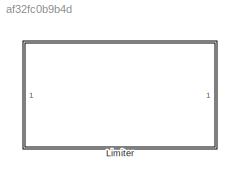
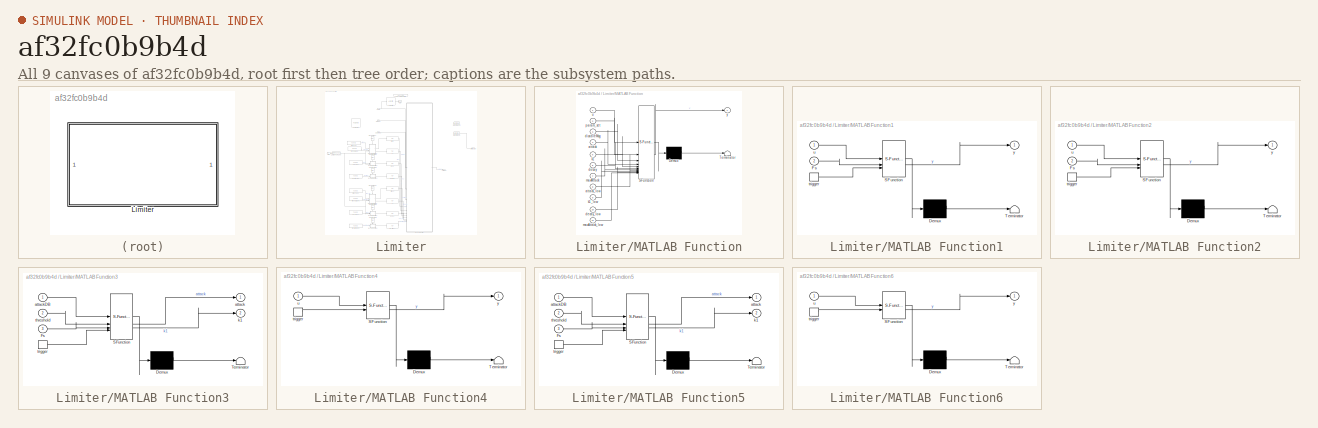
[diagram: thumbnail index - all 9 canvases of the model, root first then tree order]
MODEL slx_af32fc0b9b4d
KIND library
CONFIG AbsTol = auto
CONFIG EnableMultiTasking = off
CONFIG FixedStep = auto
CONFIG MaxStep = auto
CONFIG MinStep = auto
CONFIG RelTol = 1e-3
CONFIG SampleTimeConstraint = Unconstrained
CONFIG SolverName = VariableStepAuto
CONFIG StartTime = 0.0
CONFIG StopTime = 10.0
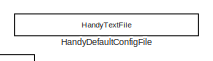
[diagram: Limiter - part 1/6, top center region]
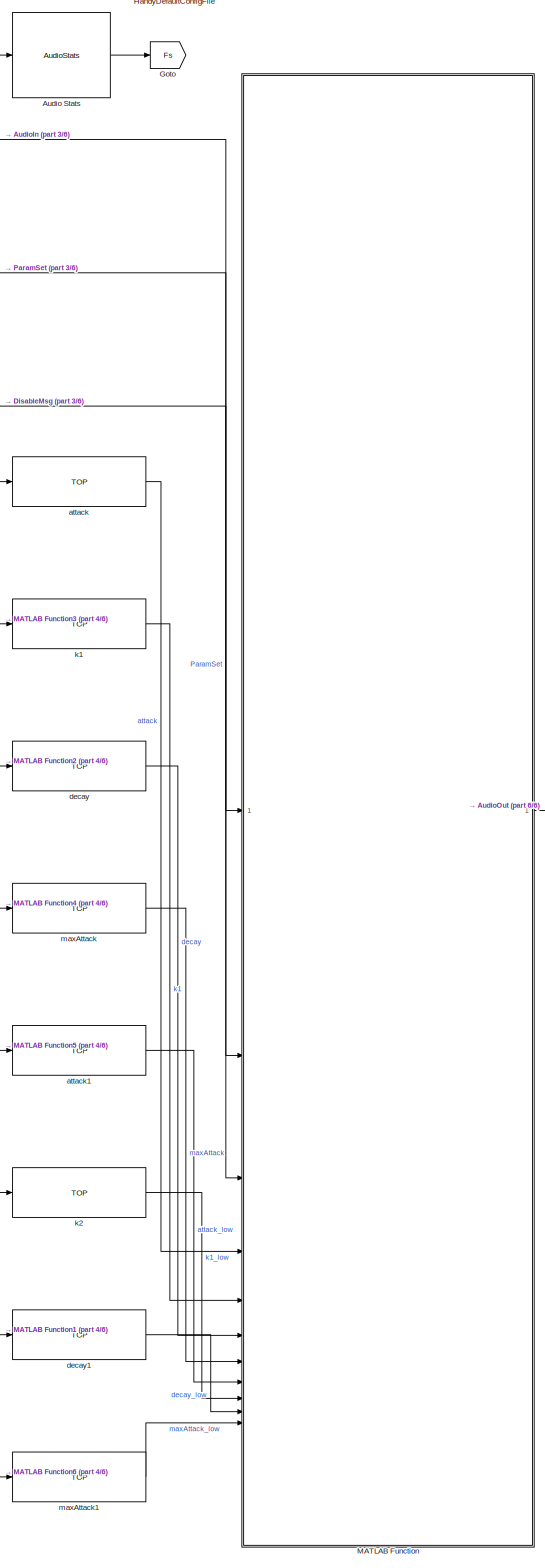
[diagram: Limiter - part 2/6, center side, full height]
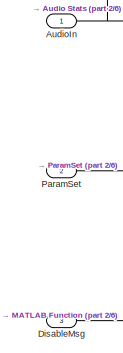
[diagram: Limiter - part 3/6, top center region]
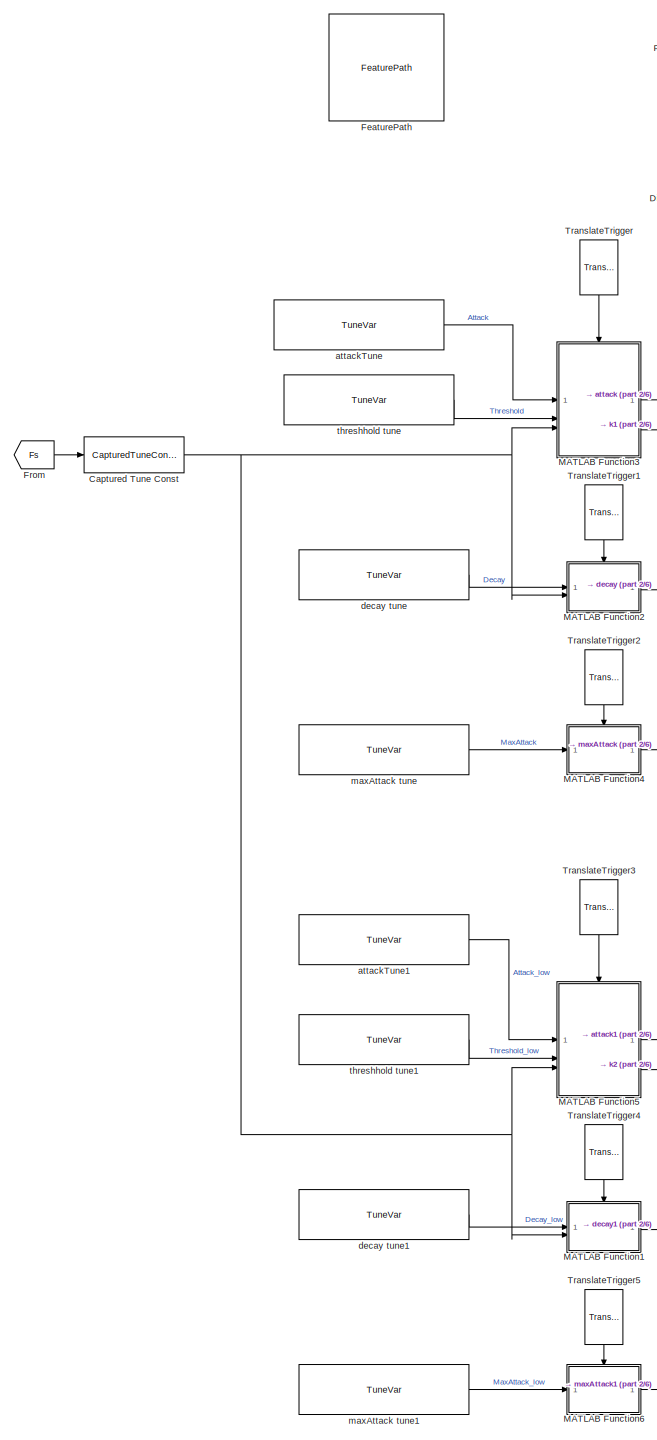
[diagram: Limiter - part 4/6, left side, full height]
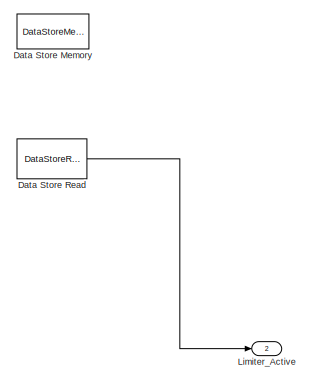
[diagram: Limiter - part 5/6, top right region]
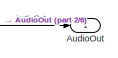
[diagram: Limiter - part 6/6, middle right region]
BLOCK [SubSystem] Limiter
  ShowPortLabels = SignalName
BLOCK [Reference] Limiter/Audio Stats  REF=AudioStats/AudioStats
  SourceBlock = AudioStats/AudioStats
  SourceProductName = Bose Talaria
  SourceType = Talaria Audio Statistics
BLOCK [Inport] Limiter/AudioIn
BLOCK [Outport] Limiter/AudioOut
  VectorParamsAs1DForOutWhenUnconnected = off
BLOCK [Reference] Limiter/Captured Tune Const  REF=TuneVar/CapturedTuneConst
  SourceBlock = TuneVar/CapturedTuneConst
  SourceProductName = Bose Talaria
  SourceType = Talaria Captured Constant
BLOCK [DataStoreMemory] Limiter/Data Store Memory
  DataStoreName = Limiter_Active
  OutDataTypeStr = uint32
  ShowAdditionalParam = off
  SignalType = real
BLOCK [DataStoreRead] Limiter/Data Store Read
  DataStoreName = Limiter_Active
  IndexOptions = Index vector (dialog)
  Indices = 1
  OutputSizes = 1
BLOCK [Inport] Limiter/DisableMsg
  Port = 3
BLOCK [Reference] Limiter/FeaturePath  REF=FeaturePath/FeaturePath
  SourceBlock = FeaturePath/FeaturePath
  SourceProductName = Bose Talaria
  SourceType = Talaria Feature Path
BLOCK [From] Limiter/From
  GotoTag = Fs
BLOCK [Goto] Limiter/Goto
  GotoTag = Fs
BLOCK [Reference] Limiter/HandyDefaultConfigFile  REF=HandyTextFile/HandyTextFile
  SourceBlock = HandyTextFile/HandyTextFile
  SourceProductName = Bose Talaria
  SourceType = Talaria Handy Text File
BLOCK [Outport] Limiter/Limiter_Active
  Port = 2
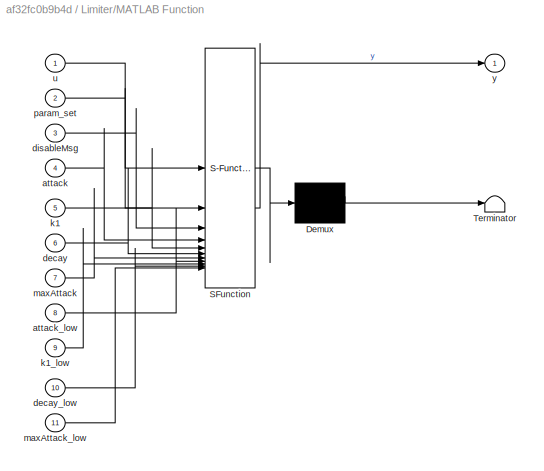
BLOCK [SubSystem] Limiter/MATLAB Function
  ErrorFcn = Stateflow.Translate.translate
  PermitHierarchicalResolution = ExplicitOnly
  SFBlockType = MATLAB Function
  TreatAsAtomicUnit = on
BLOCK [Demux] Limiter/MATLAB Function/ Demux 
  Outputs = 1
BLOCK [S-Function] Limiter/MATLAB Function/ SFunction 
  EnableBusSupport = off
  FunctionName = sf_sfun
  PortCounts = [11 2]
  SFcnIsStateOwnerBlock = off
  SFunctionDeploymentMode = off
  Tag = Stateflow S-Function 2
BLOCK [Terminator] Limiter/MATLAB Function/ Terminator 
BLOCK [Inport] Limiter/MATLAB Function/attack
  Port = 4
BLOCK [Inport] Limiter/MATLAB Function/attack_low
  Port = 8
BLOCK [Inport] Limiter/MATLAB Function/decay
  Port = 6
BLOCK [Inport] Limiter/MATLAB Function/decay_low
  Port = 10
BLOCK [Inport] Limiter/MATLAB Function/disableMsg
  Port = 3
BLOCK [Inport] Limiter/MATLAB Function/k1
  Port = 5
BLOCK [Inport] Limiter/MATLAB Function/k1_low
  Port = 9
BLOCK [Inport] Limiter/MATLAB Function/maxAttack
  Port = 7
BLOCK [Inport] Limiter/MATLAB Function/maxAttack_low
  Port = 11
BLOCK [Inport] Limiter/MATLAB Function/param_set
  Port = 2
BLOCK [Inport] Limiter/MATLAB Function/u
BLOCK [Outport] Limiter/MATLAB Function/y
  VectorParamsAs1DForOutWhenUnconnected = off
BLOCK [SubSystem] Limiter/MATLAB Function1
  ErrorFcn = Stateflow.Translate.translate
  PermitHierarchicalResolution = ExplicitOnly
  SFBlockType = MATLAB Function
  TreatAsAtomicUnit = on
BLOCK [Demux] Limiter/MATLAB Function1/ Demux 
  Outputs = 1
BLOCK [S-Function] Limiter/MATLAB Function1/ SFunction 
  EnableBusSupport = off
  FunctionName = sf_sfun
  PortCounts = [3 2]
  SFcnIsStateOwnerBlock = off
  SFunctionDeploymentMode = off
  Tag = Stateflow S-Function 1
BLOCK [Terminator] Limiter/MATLAB Function1/ Terminator 
BLOCK [Inport] Limiter/MATLAB Function1/Fs
  Port = 2
BLOCK [TriggerPort] Limiter/MATLAB Function1/trigger
  ShowOutputPort = on
  StatesWhenEnabling = held
  TriggerType = function-call
  VariantControl = (inherit)
BLOCK [Inport] Limiter/MATLAB Function1/u
BLOCK [Outport] Limiter/MATLAB Function1/y
  VectorParamsAs1DForOutWhenUnconnected = off
BLOCK [SubSystem] Limiter/MATLAB Function2
  ErrorFcn = Stateflow.Translate.translate
  PermitHierarchicalResolution = ExplicitOnly
  SFBlockType = MATLAB Function
  TreatAsAtomicUnit = on
BLOCK [Demux] Limiter/MATLAB Function2/ Demux 
  Outputs = 1
BLOCK [S-Function] Limiter/MATLAB Function2/ SFunction 
  EnableBusSupport = off
  FunctionName = sf_sfun
  PortCounts = [3 2]
  SFcnIsStateOwnerBlock = off
  SFunctionDeploymentMode = off
  Tag = Stateflow S-Function 3
BLOCK [Terminator] Limiter/MATLAB Function2/ Terminator 
BLOCK [Inport] Limiter/MATLAB Function2/Fs
  Port = 2
BLOCK [TriggerPort] Limiter/MATLAB Function2/trigger
  ShowOutputPort = on
  StatesWhenEnabling = held
  TriggerType = function-call
  VariantControl = (inherit)
BLOCK [Inport] Limiter/MATLAB Function2/u
BLOCK [Outport] Limiter/MATLAB Function2/y
  VectorParamsAs1DForOutWhenUnconnected = off
BLOCK [SubSystem] Limiter/MATLAB Function3
  ErrorFcn = Stateflow.Translate.translate
  PermitHierarchicalResolution = ExplicitOnly
  SFBlockType = MATLAB Function
  TreatAsAtomicUnit = on
BLOCK [Demux] Limiter/MATLAB Function3/ Demux 
  Outputs = 1
BLOCK [S-Function] Limiter/MATLAB Function3/ SFunction 
  EnableBusSupport = off
  FunctionName = sf_sfun
  PortCounts = [4 3]
  SFcnIsStateOwnerBlock = off
  SFunctionDeploymentMode = off
  Tag = Stateflow S-Function 4
BLOCK [Terminator] Limiter/MATLAB Function3/ Terminator 
BLOCK [Inport] Limiter/MATLAB Function3/Fs
  Port = 3
BLOCK [Outport] Limiter/MATLAB Function3/attack
  VectorParamsAs1DForOutWhenUnconnected = off
BLOCK [Inport] Limiter/MATLAB Function3/attackDB
BLOCK [Outport] Limiter/MATLAB Function3/k1
  Port = 2
  VectorParamsAs1DForOutWhenUnconnected = off
BLOCK [Inport] Limiter/MATLAB Function3/threshold
  Port = 2
BLOCK [TriggerPort] Limiter/MATLAB Function3/trigger
  ShowOutputPort = on
  StatesWhenEnabling = held
  TriggerType = function-call
  VariantControl = (inherit)
BLOCK [SubSystem] Limiter/MATLAB Function4
  ErrorFcn = Stateflow.Translate.translate
  PermitHierarchicalResolution = ExplicitOnly
  SFBlockType = MATLAB Function
  TreatAsAtomicUnit = on
BLOCK [Demux] Limiter/MATLAB Function4/ Demux 
  Outputs = 1
BLOCK [S-Function] Limiter/MATLAB Function4/ SFunction 
  EnableBusSupport = off
  FunctionName = sf_sfun
  PortCounts = [2 2]
  SFcnIsStateOwnerBlock = off
  SFunctionDeploymentMode = off
  Tag = Stateflow S-Function 5
BLOCK [Terminator] Limiter/MATLAB Function4/ Terminator 
BLOCK [TriggerPort] Limiter/MATLAB Function4/trigger
  ShowOutputPort = on
  StatesWhenEnabling = held
  TriggerType = function-call
  VariantControl = (inherit)
BLOCK [Inport] Limiter/MATLAB Function4/u
BLOCK [Outport] Limiter/MATLAB Function4/y
  VectorParamsAs1DForOutWhenUnconnected = off
BLOCK [SubSystem] Limiter/MATLAB Function5
  ErrorFcn = Stateflow.Translate.translate
  PermitHierarchicalResolution = ExplicitOnly
  SFBlockType = MATLAB Function
  TreatAsAtomicUnit = on
BLOCK [Demux] Limiter/MATLAB Function5/ Demux 
  Outputs = 1
BLOCK [S-Function] Limiter/MATLAB Function5/ SFunction 
  EnableBusSupport = off
  FunctionName = sf_sfun
  PortCounts = [4 3]
  SFcnIsStateOwnerBlock = off
  SFunctionDeploymentMode = off
  Tag = Stateflow S-Function 6
BLOCK [Terminator] Limiter/MATLAB Function5/ Terminator 
BLOCK [Inport] Limiter/MATLAB Function5/Fs
  Port = 3
BLOCK [Outport] Limiter/MATLAB Function5/attack
  VectorParamsAs1DForOutWhenUnconnected = off
BLOCK [Inport] Limiter/MATLAB Function5/attackDB
BLOCK [Outport] Limiter/MATLAB Function5/k1
  Port = 2
  VectorParamsAs1DForOutWhenUnconnected = off
BLOCK [Inport] Limiter/MATLAB Function5/threshold
  Port = 2
BLOCK [TriggerPort] Limiter/MATLAB Function5/trigger
  ShowOutputPort = on
  StatesWhenEnabling = held
  TriggerType = function-call
  VariantControl = (inherit)
BLOCK [SubSystem] Limiter/MATLAB Function6
  ErrorFcn = Stateflow.Translate.translate
  PermitHierarchicalResolution = ExplicitOnly
  SFBlockType = MATLAB Function
  TreatAsAtomicUnit = on
BLOCK [Demux] Limiter/MATLAB Function6/ Demux 
  Outputs = 1
BLOCK [S-Function] Limiter/MATLAB Function6/ SFunction 
  EnableBusSupport = off
  FunctionName = sf_sfun
  PortCounts = [2 2]
  SFcnIsStateOwnerBlock = off
  SFunctionDeploymentMode = off
  Tag = Stateflow S-Function 7
BLOCK [Terminator] Limiter/MATLAB Function6/ Terminator 
BLOCK [TriggerPort] Limiter/MATLAB Function6/trigger
  ShowOutputPort = on
  StatesWhenEnabling = held
  TriggerType = function-call
  VariantControl = (inherit)
BLOCK [Inport] Limiter/MATLAB Function6/u
BLOCK [Outport] Limiter/MATLAB Function6/y
  VectorParamsAs1DForOutWhenUnconnected = off
BLOCK [Inport] Limiter/ParamSet
  Port = 2
BLOCK [Reference] Limiter/TranslateTrigger  REF=TuneVar/TranslateTrigger
  NameLocation = left
  SourceBlock = TuneVar/TranslateTrigger
  SourceProductName = Bose Talaria
  SourceType = Talaria Translate Trigger
BLOCK [Reference] Limiter/TranslateTrigger1  REF=TuneVar/TranslateTrigger
  NameLocation = left
  SourceBlock = TuneVar/TranslateTrigger
  SourceProductName = Bose Talaria
  SourceType = Talaria Translate Trigger
BLOCK [Reference] Limiter/TranslateTrigger2  REF=TuneVar/TranslateTrigger
  NameLocation = left
  SourceBlock = TuneVar/TranslateTrigger
  SourceProductName = Bose Talaria
  SourceType = Talaria Translate Trigger
BLOCK [Reference] Limiter/TranslateTrigger3  REF=TuneVar/TranslateTrigger
  NameLocation = left
  SourceBlock = TuneVar/TranslateTrigger
  SourceProductName = Bose Talaria
  SourceType = Talaria Translate Trigger
BLOCK [Reference] Limiter/TranslateTrigger4  REF=TuneVar/TranslateTrigger
  NameLocation = left
  SourceBlock = TuneVar/TranslateTrigger
  SourceProductName = Bose Talaria
  SourceType = Talaria Translate Trigger
BLOCK [Reference] Limiter/TranslateTrigger5  REF=TuneVar/TranslateTrigger
  NameLocation = left
  SourceBlock = TuneVar/TranslateTrigger
  SourceProductName = Bose Talaria
  SourceType = Talaria Translate Trigger
BLOCK [Reference] Limiter/attack  REF=TOP/TOP
  SourceBlock = TOP/TOP
  SourceProductName = Bose Talaria
  SourceType = Talaria Target Overlay Parameter
BLOCK [Reference] Limiter/attack1  REF=TOP/TOP
  SourceBlock = TOP/TOP
  SourceProductName = Bose Talaria
  SourceType = Talaria Target Overlay Parameter
BLOCK [Reference] Limiter/attackTune  REF=TuneVar/TuneVar
  SourceBlock = TuneVar/TuneVar
  SourceProductName = Bose Talaria
  SourceType = Talaria Tune Variable
BLOCK [Reference] Limiter/attackTune1  REF=TuneVar/TuneVar
  SourceBlock = TuneVar/TuneVar
  SourceProductName = Bose Talaria
  SourceType = Talaria Tune Variable
BLOCK [Reference] Limiter/decay  REF=TOP/TOP
  SourceBlock = TOP/TOP
  SourceProductName = Bose Talaria
  SourceType = Talaria Target Overlay Parameter
BLOCK [Reference] Limiter/decay tune  REF=TuneVar/TuneVar
  SourceBlock = TuneVar/TuneVar
  SourceProductName = Bose Talaria
  SourceType = Talaria Tune Variable
BLOCK [Reference] Limiter/decay tune1  REF=TuneVar/TuneVar
  SourceBlock = TuneVar/TuneVar
  SourceProductName = Bose Talaria
  SourceType = Talaria Tune Variable
BLOCK [Reference] Limiter/decay1  REF=TOP/TOP
  SourceBlock = TOP/TOP
  SourceProductName = Bose Talaria
  SourceType = Talaria Target Overlay Parameter
BLOCK [Reference] Limiter/k1  REF=TOP/TOP
  SourceBlock = TOP/TOP
  SourceProductName = Bose Talaria
  SourceType = Talaria Target Overlay Parameter
BLOCK [Reference] Limiter/k2  REF=TOP/TOP
  SourceBlock = TOP/TOP
  SourceProductName = Bose Talaria
  SourceType = Talaria Target Overlay Parameter
BLOCK [Reference] Limiter/maxAttack  REF=TOP/TOP
  SourceBlock = TOP/TOP
  SourceProductName = Bose Talaria
  SourceType = Talaria Target Overlay Parameter
BLOCK [Reference] Limiter/maxAttack tune  REF=TuneVar/TuneVar
  SourceBlock = TuneVar/TuneVar
  SourceProductName = Bose Talaria
  SourceType = Talaria Tune Variable
BLOCK [Reference] Limiter/maxAttack tune1  REF=TuneVar/TuneVar
  SourceBlock = TuneVar/TuneVar
  SourceProductName = Bose Talaria
  SourceType = Talaria Tune Variable
BLOCK [Reference] Limiter/maxAttack1  REF=TOP/TOP
  SourceBlock = TOP/TOP
  SourceProductName = Bose Talaria
  SourceType = Talaria Target Overlay Parameter
BLOCK [Reference] Limiter/threshhold tune  REF=TuneVar/TuneVar
  SourceBlock = TuneVar/TuneVar
  SourceProductName = Bose Talaria
  SourceType = Talaria Tune Variable
BLOCK [Reference] Limiter/threshhold tune1  REF=TuneVar/TuneVar
  SourceBlock = TuneVar/TuneVar
  SourceProductName = Bose Talaria
  SourceType = Talaria Tune Variable
LINE Limiter/Audio Stats:1 -> Limiter/Goto:1
NET Limiter/AudioIn:1 -> Limiter/Audio Stats:1, Limiter/MATLAB Function:1
NET Limiter/Captured Tune Const:1 -> Limiter/MATLAB Function1:2, Limiter/MATLAB Function2:2, Limiter/MATLAB Function3:3, Limiter/MATLAB Function5:3
LINE Limiter/Data Store Read:1 -> Limiter/Limiter_Active:1
LINE Limiter/DisableMsg:1 -> Limiter/MATLAB Function:3
LINE Limiter/From:1 -> Limiter/Captured Tune Const:1
LINE Limiter/MATLAB Function1:1 -> Limiter/decay1:1
LINE Limiter/MATLAB Function2:1 -> Limiter/decay:1
LINE Limiter/MATLAB Function3:1 -> Limiter/attack:1
LINE Limiter/MATLAB Function3:2 -> Limiter/k1:1
LINE Limiter/MATLAB Function4:1 -> Limiter/maxAttack:1
LINE Limiter/MATLAB Function5:1 -> Limiter/attack1:1
LINE Limiter/MATLAB Function5:2 -> Limiter/k2:1
LINE Limiter/MATLAB Function6:1 -> Limiter/maxAttack1:1
LINE Limiter/MATLAB Function:1 -> Limiter/AudioOut:1
LINE Limiter/ParamSet:1 -> Limiter/MATLAB Function:2
LINE Limiter/TranslateTrigger1:1 -> Limiter/MATLAB Function2:trigger
LINE Limiter/TranslateTrigger2:1 -> Limiter/MATLAB Function4:trigger
LINE Limiter/TranslateTrigger3:1 -> Limiter/MATLAB Function5:trigger
LINE Limiter/TranslateTrigger4:1 -> Limiter/MATLAB Function1:trigger
LINE Limiter/TranslateTrigger5:1 -> Limiter/MATLAB Function6:trigger
LINE Limiter/TranslateTrigger:1 -> Limiter/MATLAB Function3:trigger
LINE Limiter/attack1:1 -> Limiter/MATLAB Function:8
LINE Limiter/attack:1 -> Limiter/MATLAB Function:4
LINE Limiter/attackTune1:1 -> Limiter/MATLAB Function5:1
LINE Limiter/attackTune:1 -> Limiter/MATLAB Function3:1
LINE Limiter/decay tune1:1 -> Limiter/MATLAB Function1:1
LINE Limiter/decay tune:1 -> Limiter/MATLAB Function2:1
LINE Limiter/decay1:1 -> Limiter/MATLAB Function:10
LINE Limiter/decay:1 -> Limiter/MATLAB Function:6
LINE Limiter/k1:1 -> Limiter/MATLAB Function:5
LINE Limiter/k2:1 -> Limiter/MATLAB Function:9
LINE Limiter/maxAttack tune1:1 -> Limiter/MATLAB Function6:1
LINE Limiter/maxAttack tune:1 -> Limiter/MATLAB Function4:1
LINE Limiter/maxAttack1:1 -> Limiter/MATLAB Function:11
LINE Limiter/maxAttack:1 -> Limiter/MATLAB Function:7
LINE Limiter/threshhold tune1:1 -> Limiter/MATLAB Function5:2
LINE Limiter/threshhold tune:1 -> Limiter/MATLAB Function3:2
note: NET lines group one-source signal fan-out (src -> all destinations, sorted); 1:1 wires keep LINE
CHART Limiter/MATLAB Function1 states=1 transitions=1
  STATE_LABEL 'eML_blk_kernel()'
  STATE_LABEL 'SCRIPT:\nfunction y = fcn(u, Fs)\n\n% Convert from dB to linear\ny = single(undb20(abs(u.Value) / Fs));\n'
CHART Limiter/MATLAB Function states=1 transitions=1
  STATE_LABEL 'eML_blk_kernel()'
  STATE_LABEL 'SCRIPT:\nfunction y = limiter(u, param_set, disableMsg, attack, k1, decay, maxAttack, attack_low, k1_low, decay_low, maxAttack_low)\n\n% This is the main function for the Limiter.\n% It takes an audio input, as well as 8 tunable variables (2 sets of 4),\n% which are attack, maxAttack, k1, and decay. It will limit, or apply\n% a gain reduction, to any samples that are essentially above a \n% pre-set thres...<+1782ch>'
CHART Limiter/MATLAB Function2 states=1 transitions=1
  STATE_LABEL 'eML_blk_kernel()'
  STATE_LABEL 'SCRIPT:\nfunction y = fcn(u, Fs)\n\n% Convert decay value from dB to linear\ny = single(undb20(abs(u.Value) / Fs));\n'
CHART Limiter/MATLAB Function3 states=1 transitions=1
  STATE_LABEL 'eML_blk_kernel()'
  STATE_LABEL 'SCRIPT:\nfunction [attack, k1]= fcn(attackDB, threshold, Fs)\n\n% This function translates threshold and attackDB into a k1 value\n% k1 is used later in the main Limiter function to apply gain redux\n\n% If we find that any channel has a threshold value of zero,\n% reset it to 100, for we essentially do not want to limit \n% that specific channel.\nminThreshold = 0.001;   % check against small number, set ...<+403ch>'
CHART Limiter/MATLAB Function4 states=1 transitions=1
  STATE_LABEL 'eML_blk_kernel()'
  STATE_LABEL 'SCRIPT:\nfunction y = fcn(u)\n\n% Translate from dB to linear\ny = single(undb20(-abs(u.Value)));\n'
CHART Limiter/MATLAB Function5 states=1 transitions=1
  STATE_LABEL 'eML_blk_kernel()'
  STATE_LABEL 'SCRIPT:\nfunction [attack, k1]= fcn(attackDB, threshold, Fs)\n\n% This function translates threshold and attackDB into a k1 value\n% k1 is used later in the main Limiter function to apply gain redux\n\n% If we find that any channel has a threshold value of zero,\n% reset it to 100, for we essentially do not want to limit \n% that specific channel.\nminThreshold = 0.001;   % check against small number, set ...<+403ch>'
CHART Limiter/MATLAB Function6 states=1 transitions=1
  STATE_LABEL 'eML_blk_kernel()'
  STATE_LABEL 'SCRIPT:\nfunction y = fcn(u)\n\n% Convert from dB to linear\ny = single(undb20(-abs(u.Value)));\n'
CHART  states=0 transitions=0
CHART  states=0 transitions=0
CHART  states=0 transitions=0
CHART  states=0 transitions=0
CHART  states=0 transitions=0
CHART  states=0 transitions=0
CHART  states=0 transitions=0
